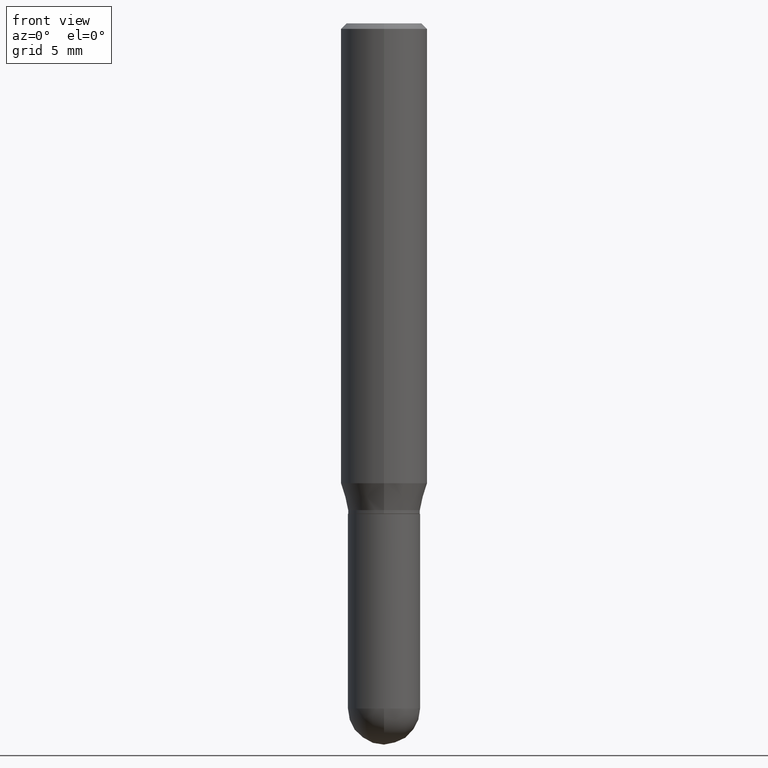
[diagram: clean part render]
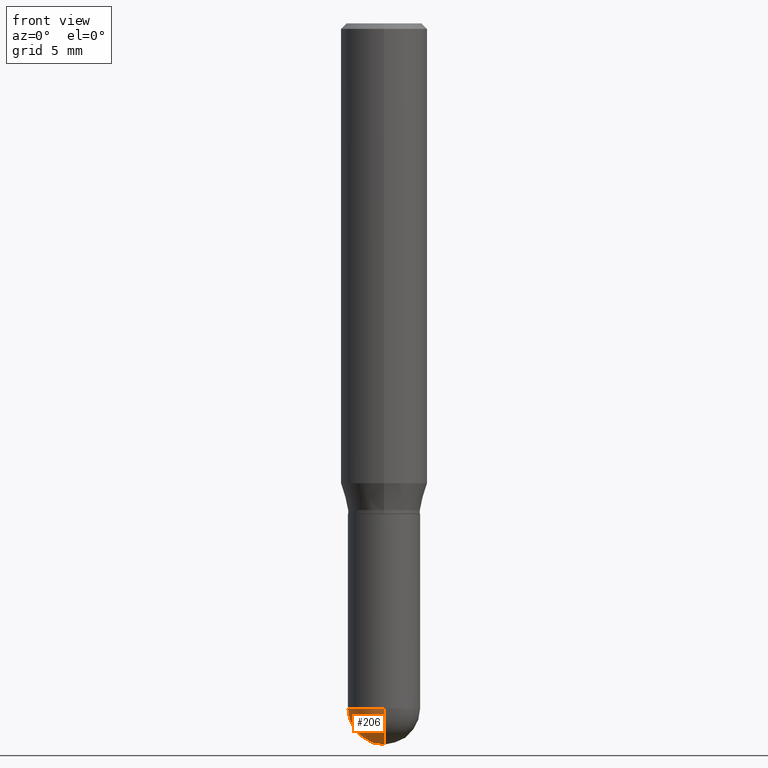
[diagram: same view with one face highlighted and labeled with its STEP entity id]
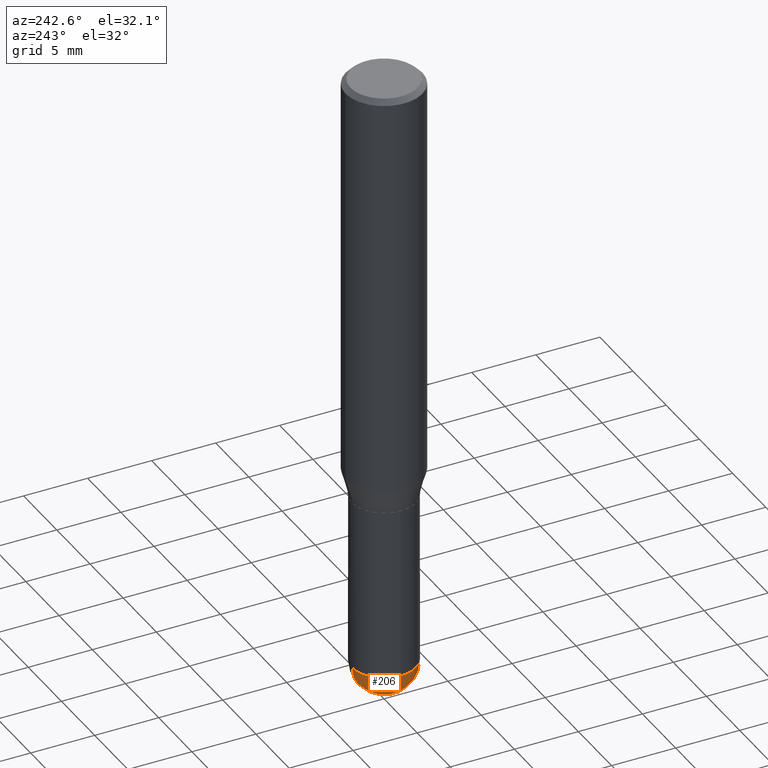
[diagram: same view with one face highlighted and labeled with its STEP entity id]
A machine part, front view. The second image highlights one B-rep face of the part: STEP entity #206.
A second angle (auxiliary view) of the same face is appended — the face is thin or edge-on in the first view.
In plain terms, the highlighted spherical surface has radius 2.5006 mm.
Its self-contained STEP definition (entity closure, byte-faithful):
#2 = ORIENTED_EDGE ( 'NONE', *, *, #47, .F. ) ;
#4 = VERTEX_POINT ( 'NONE', #377 ) ;
#13 = AXIS2_PLACEMENT_3D ( 'NONE', #268, #69, #491 ) ;
#22 = ORIENTED_EDGE ( 'NONE', *, *, #346, .F. ) ;
#47 = EDGE_CURVE ( 'NONE', #364, #320, #336, .T. ) ;
#48 = DIRECTION ( 'NONE',  ( 6.982962677686265922E-15, 1.000000000000000000, 0.000000000000000000 ) ) ;
#52 = EDGE_CURVE ( 'NONE', #498, #4, #464, .T. ) ;
#69 = DIRECTION ( 'NONE',  ( -1.000000000000000000, 7.105427357601001070E-15, -4.926315508542082329E-29 ) ) ;
#91 = ORIENTED_EDGE ( 'NONE', *, *, #52, .T. ) ;
#106 = DIRECTION ( 'NONE',  ( -2.445468806185136597E-29, 3.491481338843145583E-15, 1.000000000000000000 ) ) ;
#110 = AXIS2_PLACEMENT_3D ( 'NONE', #459, #106, #335 ) ;
#119 = AXIS2_PLACEMENT_3D ( 'NONE', #430, #402, #323 ) ;
#127 = CARTESIAN_POINT ( 'NONE',  ( 4.564729828889544053E-29, -6.541301325441230978E-15, -1.870050000000000212 ) ) ;
#128 = AXIS2_PLACEMENT_3D ( 'NONE', #127, #170, #48 ) ;
#168 = EDGE_LOOP ( 'NONE', ( #22, #91, #497, #2 ) ) ;
#170 = DIRECTION ( 'NONE',  ( 1.000000000000000000, -6.982962677686265922E-15, 4.883557194083112340E-29 ) ) ;
#206 = ADVANCED_FACE ( 'NONE', ( #432 ), #392, .T. ) ;
#231 = EDGE_CURVE ( 'NONE', #320, #4, #385, .T. ) ;
#254 = CARTESIAN_POINT ( 'NONE',  ( -0.09844999999999999585, -4.901941475583711971E-15, -1.870050000000000212 ) ) ;
#268 = CARTESIAN_POINT ( 'NONE',  ( 4.564729828889544053E-29, -6.541301325441230978E-15, -1.870050000000000212 ) ) ;
#320 = VERTEX_POINT ( 'NONE', #254 ) ;
#323 = DIRECTION ( 'NONE',  ( 1.000000000000000000, -6.982962677686265922E-15, 0.000000000000000000 ) ) ;
#335 = DIRECTION ( 'NONE',  ( 1.000000000000000000, -6.982962677686265922E-15, 0.000000000000000000 ) ) ;
#336 = CIRCLE ( 'NONE', #110, 0.09844999999999999585 ) ;
#346 = EDGE_CURVE ( 'NONE', #498, #364, #493, .T. ) ;
#349 = DIRECTION ( 'NONE',  ( 6.982962677686265922E-15, 1.000000000000000000, -2.774858297271980348E-15 ) ) ;
#351 = CARTESIAN_POINT ( 'NONE',  ( 4.564729828889544053E-29, -6.541301325441230978E-15, -1.870050000000000212 ) ) ;
#364 = VERTEX_POINT ( 'NONE', #405 ) ;
#377 = CARTESIAN_POINT ( 'NONE',  ( -6.995293233557726523E-16, -0.09845000000000650453, -1.870049999999999990 ) ) ;
#385 = CIRCLE ( 'NONE', #119, 0.09844999999999999585 ) ;
#392 = SPHERICAL_SURFACE ( 'NONE', #414, 0.09844999999999994034 ) ;
#395 = DIRECTION ( 'NONE',  ( -1.000000000000000000, 6.982962677686265922E-15, -4.883557194083112340E-29 ) ) ;
#402 = DIRECTION ( 'NONE',  ( -2.445468806185136597E-29, 3.491481338843145583E-15, 1.000000000000000000 ) ) ;
#405 = CARTESIAN_POINT ( 'NONE',  ( 6.874726756182583140E-16, 0.09844999999999343165, -1.870050000000000434 ) ) ;
#414 = AXIS2_PLACEMENT_3D ( 'NONE', #351, #395, #349 ) ;
#430 = CARTESIAN_POINT ( 'NONE',  ( 4.573148941006514739E-29, -6.529244677703625427E-15, -1.870050000000000212 ) ) ;
#432 = FACE_OUTER_BOUND ( 'NONE', #168, .T. ) ;
#459 = CARTESIAN_POINT ( 'NONE',  ( 4.573148941006514739E-29, -6.529244677703625427E-15, -1.870050000000000212 ) ) ;
#464 = CIRCLE ( 'NONE', #13, 0.09844999999999994034 ) ;
#490 = CARTESIAN_POINT ( 'NONE',  ( 4.809695788916955932E-29, -6.879009339381536060E-15, -1.968500000000000139 ) ) ;
#491 = DIRECTION ( 'NONE',  ( -7.105427357601001070E-15, -1.000000000000000000, 0.000000000000000000 ) ) ;
#493 = CIRCLE ( 'NONE', #128, 0.09844999999999994034 ) ;
#497 = ORIENTED_EDGE ( 'NONE', *, *, #231, .F. ) ;
#498 = VERTEX_POINT ( 'NONE', #490 ) ;